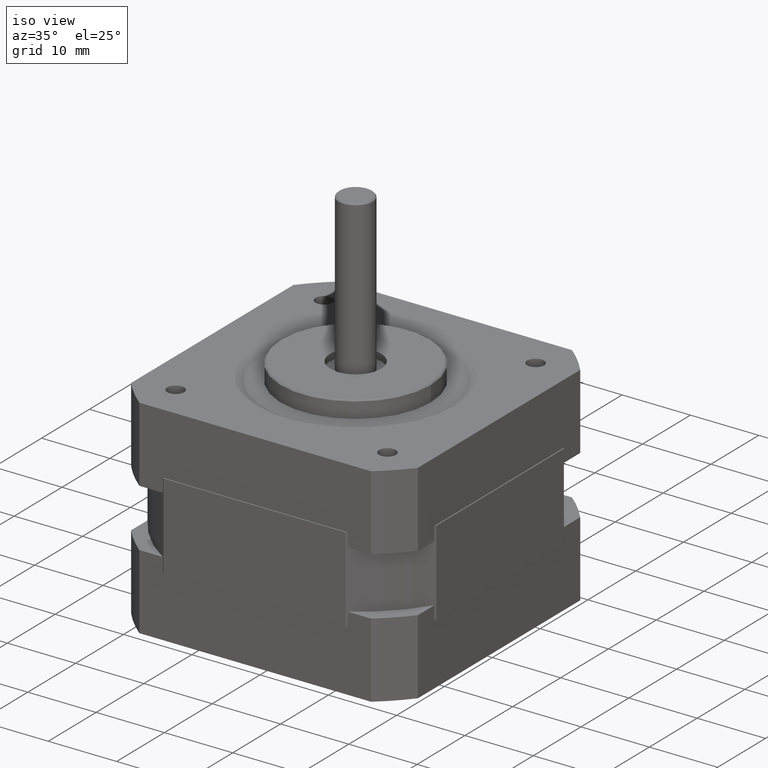
[diagram: clean part render]
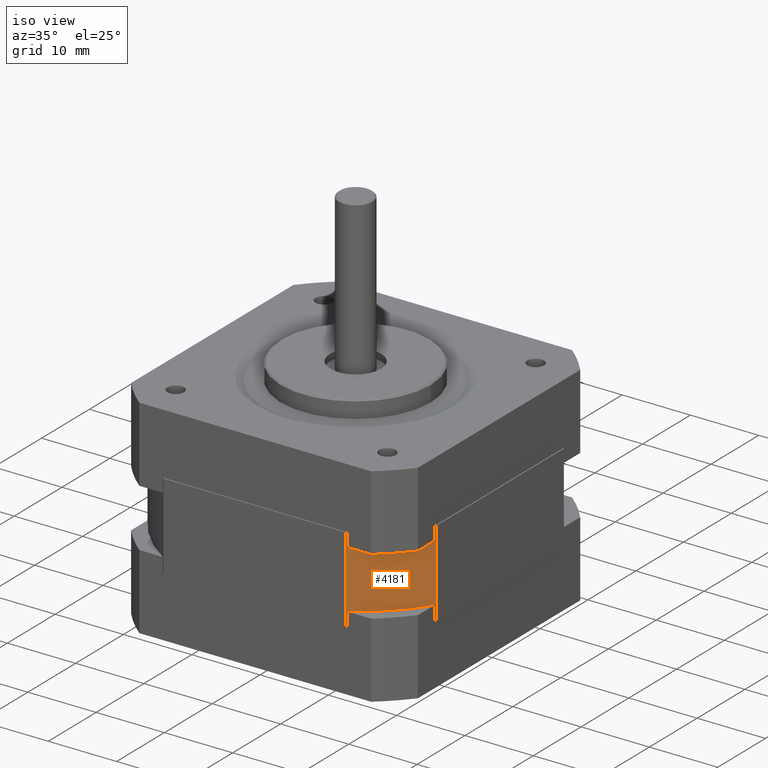
[diagram: same view with one face highlighted and labeled with its STEP entity id]
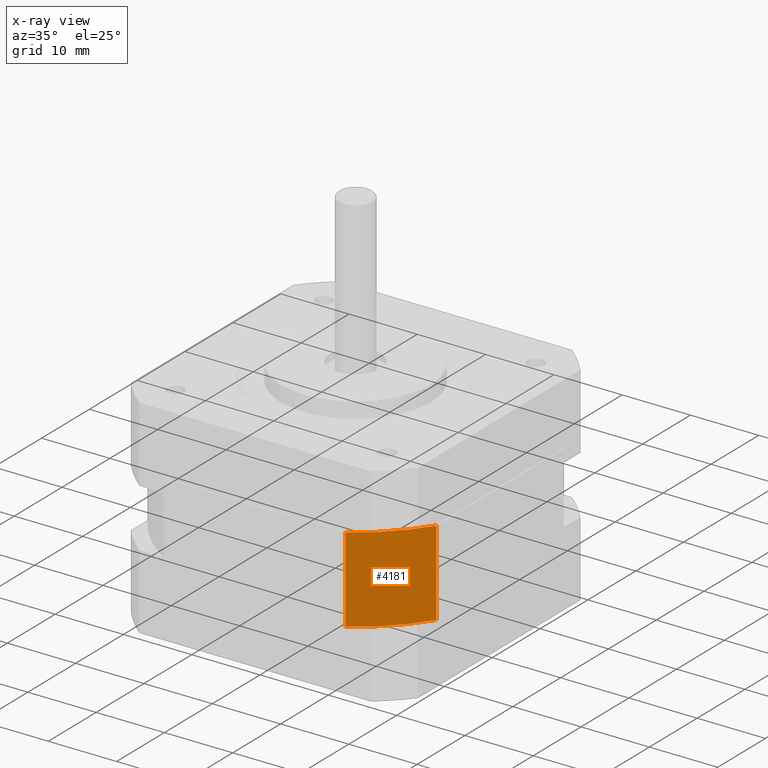
[diagram: x-ray of the same camera — body ghosted, the highlighted face saturated]
A machine part, iso view. The second image highlights one B-rep face of the part: STEP entity #4181.
The next image is the same camera in x-ray: the body ghosted, the highlighted face saturated — about 0% of this face is hidden behind the body in this view.
In plain terms, the highlighted cylindrical surface (partial cylindrical patch) has radius 25 mm, axis along (0, -0, 1).
Its self-contained STEP definition (entity closure, byte-faithful):
#346=LINE('',#7300,#594);
#347=LINE('',#7301,#595);
#594=VECTOR('',#5931,10.);
#595=VECTOR('',#5932,10.);
#861=CYLINDRICAL_SURFACE('',#4696,25.);
#1111=FACE_OUTER_BOUND('',#1445,.T.);
#1445=EDGE_LOOP('',(#3714,#3715,#3716,#3717));
#1680=CIRCLE('',#4693,25.);
#1683=CIRCLE('',#4697,25.);
#2061=VERTEX_POINT('',#7283);
#2062=VERTEX_POINT('',#7285);
#2067=VERTEX_POINT('',#7297);
#2068=VERTEX_POINT('',#7298);
#2613=EDGE_CURVE('',#2062,#2061,#1680,.T.);
#2619=EDGE_CURVE('',#2067,#2068,#1683,.T.);
#2620=EDGE_CURVE('',#2068,#2062,#346,.T.);
#2621=EDGE_CURVE('',#2067,#2061,#347,.T.);
#3714=ORIENTED_EDGE('',*,*,#2619,.T.);
#3715=ORIENTED_EDGE('',*,*,#2620,.T.);
#3716=ORIENTED_EDGE('',*,*,#2613,.T.);
#3717=ORIENTED_EDGE('',*,*,#2621,.F.);
#4181=ADVANCED_FACE('',(#1111),#861,.T.);
#4693=AXIS2_PLACEMENT_3D('',#7286,#5918,#5919);
#4696=AXIS2_PLACEMENT_3D('',#7296,#5927,#5928);
#4697=AXIS2_PLACEMENT_3D('',#7299,#5929,#5930);
#5918=DIRECTION('center_axis',(9.4368957093138E-16,-2.46519032881584E-32,
1.));
#5919=DIRECTION('ref_axis',(-0.533182895449583,0.846,5.03159137834767E-16));
#5927=DIRECTION('center_axis',(9.4368957093138E-16,-2.46519032881584E-32,
1.));
#5928=DIRECTION('ref_axis',(-0.533182895449583,0.846,5.03159137834767E-16));
#5929=DIRECTION('center_axis',(-9.4368957093138E-16,2.46519032881584E-32,
-1.));
#5930=DIRECTION('ref_axis',(-0.533182895449583,0.846,5.03159137834767E-16));
#5931=DIRECTION('',(-9.4368957093138E-16,2.46519032881584E-32,-1.));
#5932=DIRECTION('',(-9.4368957093138E-16,2.46519032881584E-32,-1.));
#7283=CARTESIAN_POINT('',(21.15,-13.3295723862395,-15.5000000000001));
#7285=CARTESIAN_POINT('',(13.3295723862396,-21.15,-15.5000000000001));
#7286=CARTESIAN_POINT('Origin',(-1.57894530783409E-14,4.71844785465692E-15,
-15.5000000000001));
#7296=CARTESIAN_POINT('Origin',(-9.89139326001978E-15,4.71844785465692E-15,
-9.25000000000007));
#7297=CARTESIAN_POINT('',(21.15,-13.3295723862395,-3.00000000000009));
#7298=CARTESIAN_POINT('',(13.3295723862396,-21.15,-3.00000000000008));
#7299=CARTESIAN_POINT('Origin',(-3.99333344169866E-15,4.71844785465692E-15,
-3.00000000000007));
#7300=CARTESIAN_POINT('',(13.3295723862396,-21.15,-9.25000000000008));
#7301=CARTESIAN_POINT('',(21.15,-13.3295723862395,-9.25000000000009));